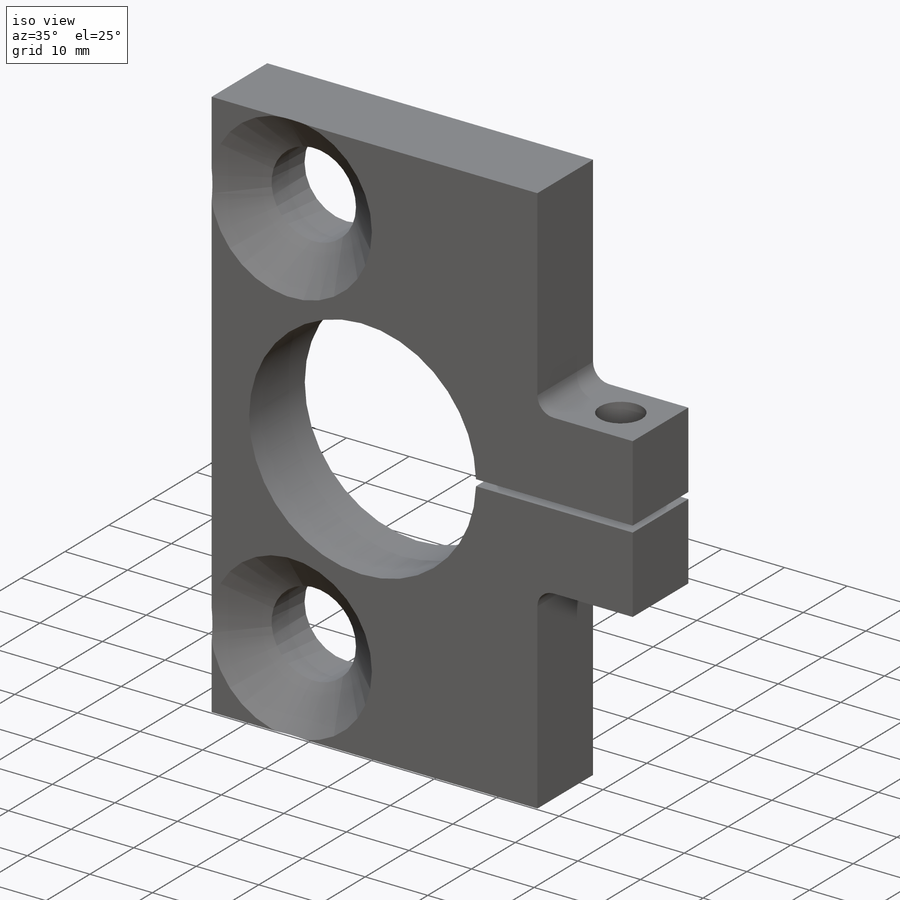
[diagram: iso view]
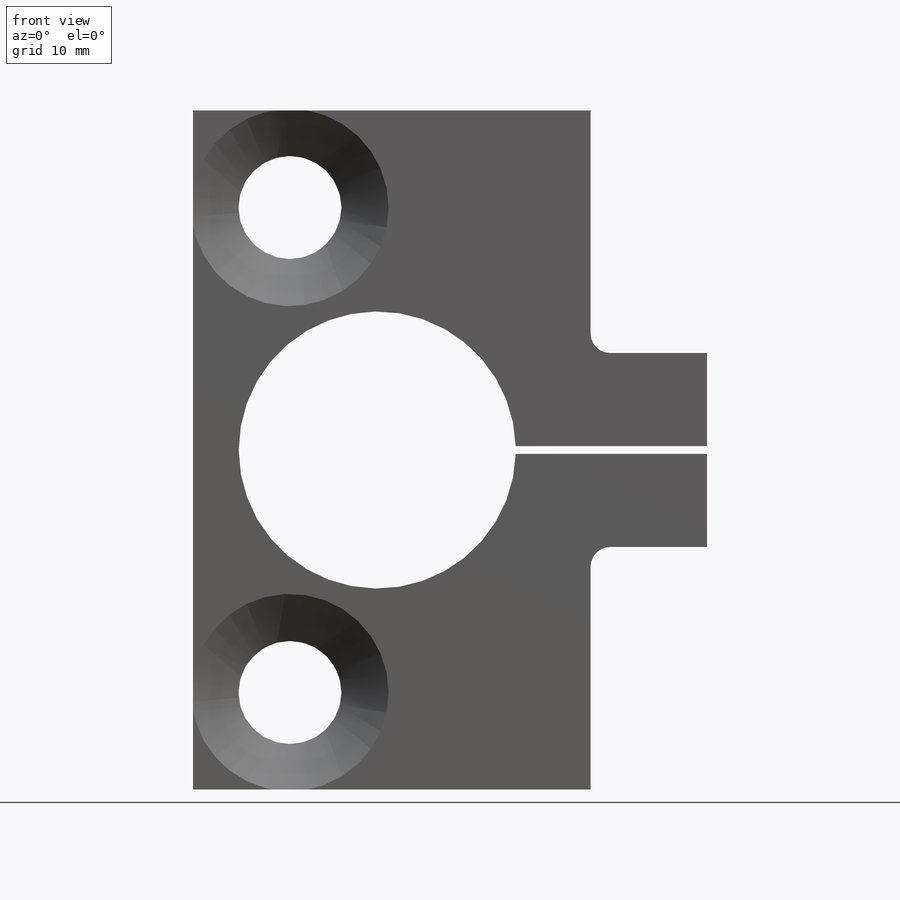
[diagram: front view]
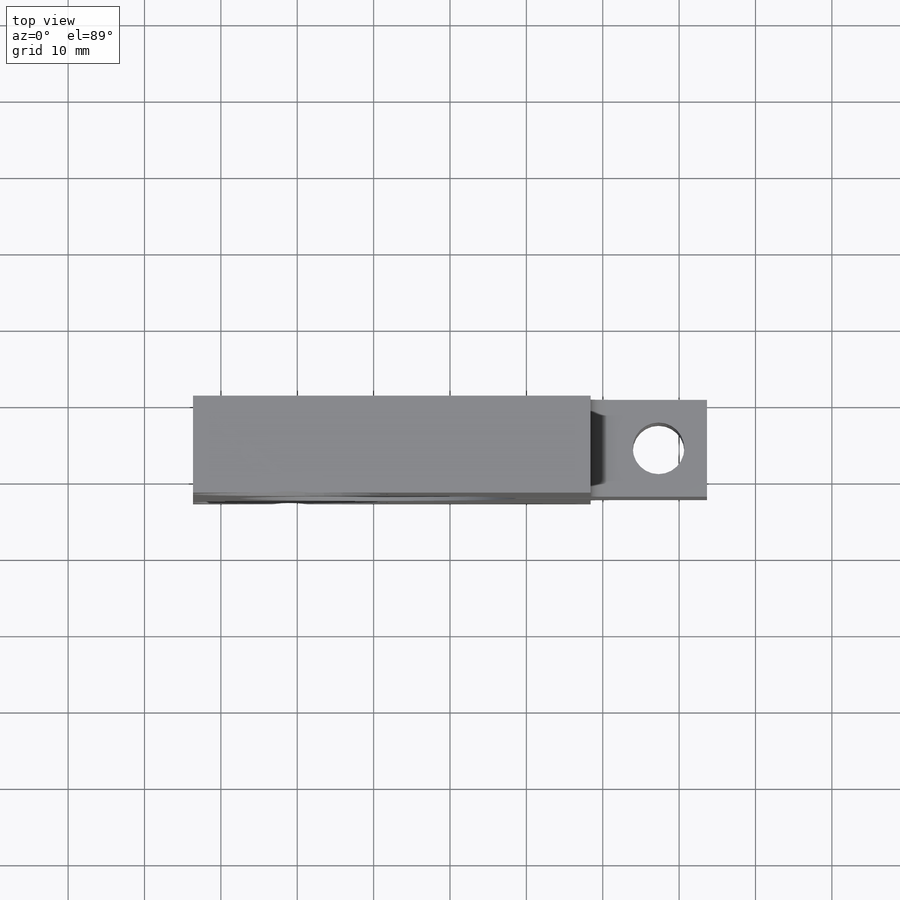
[diagram: top view]
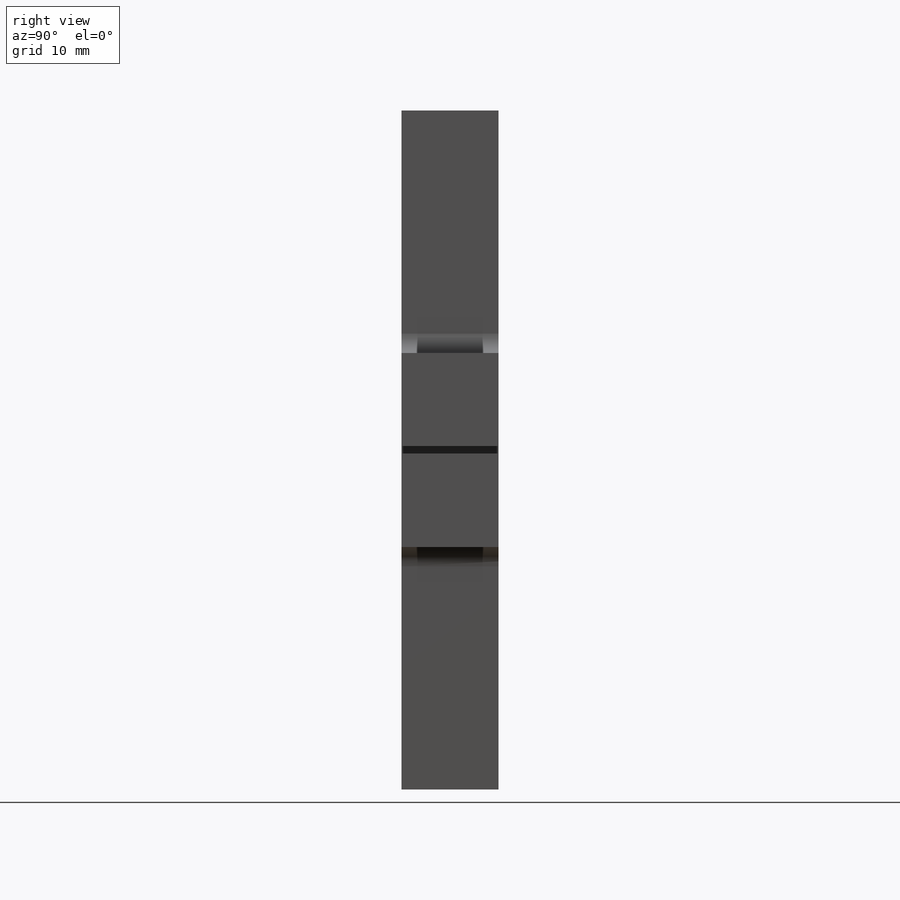
[diagram: right view]
SOLIDWORKS PART (.sldprt)
format: sldprt  version: not decoded by parser v0  size: 332,288 bytes
history: native  units: mm
features: sketch x14, cut_extrude x3, hole x3, mirror x2, material x1, extrude x1, fillet x1, plane x1 (+12 scaffold rows collapsed)
feature tree (38):
  scaffold x12  (default folders/planes/origin — collapsed)
  material  "6061-T6 (SS)"
  sketch  "Sketch1"  dims[D1=67.31mm D2=88.9mm]
  extrude  "Extrude1"  Depth=12.7mm
  sketch  "Sketch2"  dims[D1=36.2712mm D2=24.13mm]
  cut_extrude  "Extrude2"  [1 undecoded]
  sketch  "Sketch3"  dims[D1=1.016mm]
  cut_extrude  "Extrude3"  [1 undecoded]
  sketch  "Sketch4"  dims[D1=6.35mm]
  hole  "1/4 Clearance Hole1"  Diameter=6.7564mm Depth=88.9mm
  sketch  "3DSketch1"
  sketch  "Sketch5"  dims[hole-wizard template sketch: 60 standard entries collapsed; hole parameters kept: c18.Thru Hole Depth=88.9mm]
  sketch  "Sketch6"  dims[D1=6.35mm]
  hole  "Tap Drill for 1/4-20 Tap1"  Diameter=5.1054mm Depth=17.78mm
  sketch  "3DSketch2"
  sketch  "Sketch7"  dims[hole-wizard template sketch: 47 standard entries collapsed; hole parameters kept: c15.Hole Depth=17.78mm c15.D3=~14.816244mm c15.Drill Angle=118.0deg]
  sketch  "Sketch8"  dims[D1=12.7mm D2=12.7mm]
  hole  "CSK for 1/2 Flat Head Machine Screw (100)1"  Diameter=13.49248mm Depth=12.7mm
  sketch  "3DSketch3"
  sketch  "Sketch9"  dims[hole-wizard template sketch: 54 standard entries collapsed; hole parameters kept: c17.Thru Hole Dia.=~13.49248mm c17.Thru Hole Depth=12.7mm c17.Near C'Sink Dia.=25.8318mm c17.D4=~3.666174mm c17.Near C'Sink Angle=100.0deg]
  mirror  "Mirror1"
  sketch  "Sketch10"  dims[D1=15.24mm D2=31.75mm]
  cut_extrude  "Extrude4"  [1 undecoded]
  fillet  "Fillet1"  Radius=2.54mm
  mirror  "Mirror2"
  plane  "Plane1"  Offset=6.35mm
  sketch  "Sketch11"
decode coverage: 15 of 24 modeling features carry decoded parameters
note: ~ marks probable driven/reference dimensions
note: 3 parameter values undecoded
summary: no parameter record found for 3 features
note: suppression state not decoded; provenance and decode notes live in map.json
